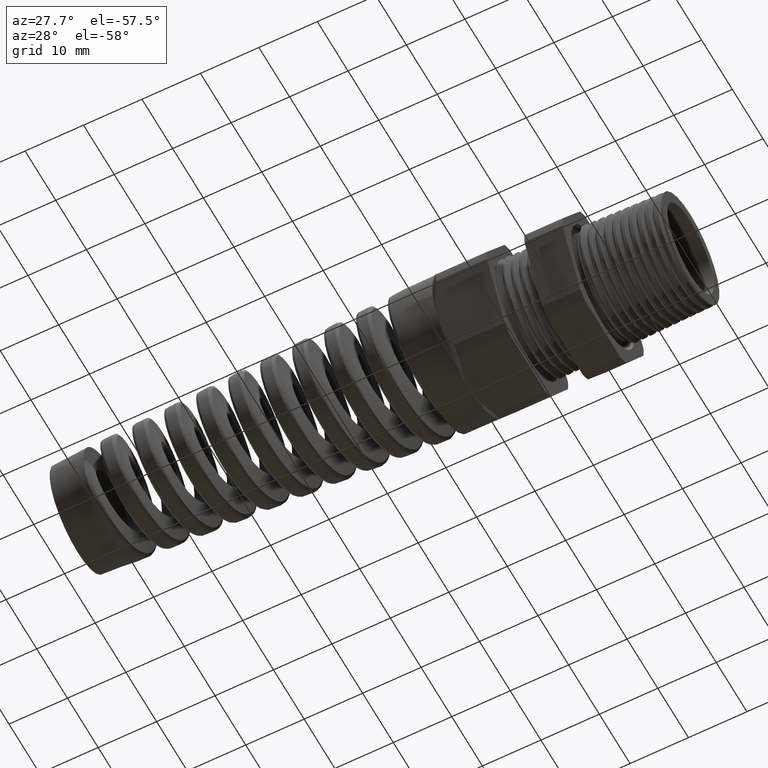
[diagram: clean part render]
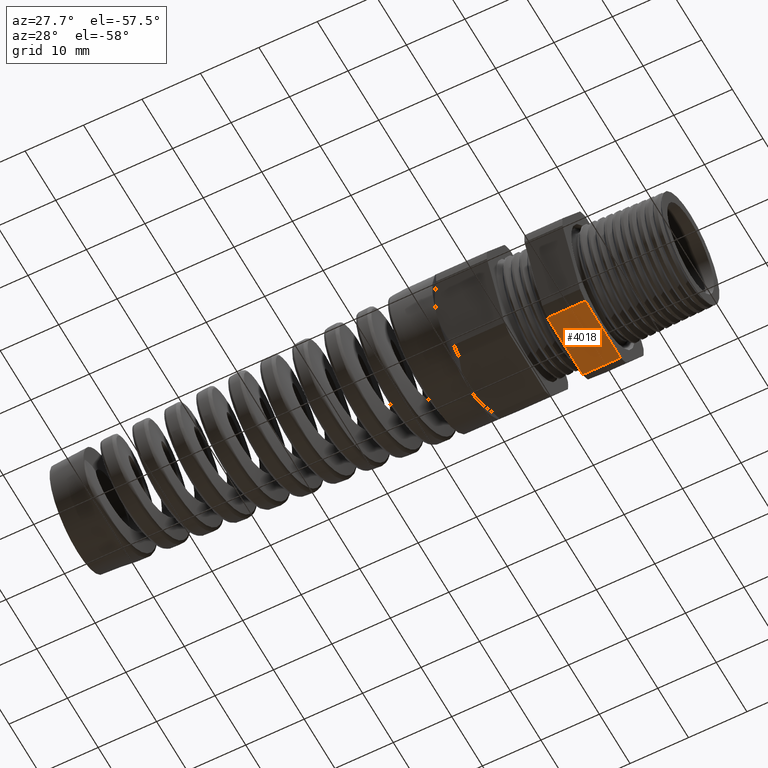
[diagram: same view with one face highlighted and labeled with its STEP entity id]
A machine part, auxiliary view. The second image highlights one B-rep face of the part: STEP entity #4018.
In plain terms, the highlighted planar face has unit normal (0, 0, -1).
Its self-contained STEP definition (entity closure, byte-faithful):
#650 = VERTEX_POINT ( 'NONE', #4281 ) ;
#783 = VERTEX_POINT ( 'NONE', #4309 ) ;
#786 = EDGE_CURVE ( 'NONE', #783, #650, #4308, .T. ) ;
#4018 = ADVANCED_FACE ( 'NONE', ( #16259 ), #16258, .T. ) ;
#4019 = EDGE_LOOP ( 'NONE', ( #4020, #4021, #4022, #4025 ) ) ;
#4020 = ORIENTED_EDGE ( 'NONE', *, *, #4040, .F. ) ;
#4021 = ORIENTED_EDGE ( 'NONE', *, *, #786, .F. ) ;
#4022 = ORIENTED_EDGE ( 'NONE', *, *, #4023, .T. ) ;
#4023 = EDGE_CURVE ( 'NONE', #783, #4024, #16253, .T. ) ;
#4024 = VERTEX_POINT ( 'NONE', #16249 ) ;
#4025 = ORIENTED_EDGE ( 'NONE', *, *, #4026, .F. ) ;
#4026 = EDGE_CURVE ( 'NONE', #4041, #4024, #16248, .T. ) ;
#4040 = EDGE_CURVE ( 'NONE', #650, #4041, #16303, .T. ) ;
#4041 = VERTEX_POINT ( 'NONE', #16296 ) ;
#4281 = CARTESIAN_POINT ( 'NONE',  ( -0.3100000000000000000, 0.2264307620443831200, -0.4700000000000000300 ) ) ;
#4300 = DIRECTION ( 'NONE',  ( 0.0000000000000000000, 1.000000000000000000, 0.0000000000000000000 ) ) ;
#4301 = VECTOR ( 'NONE', #4300, 39.37007874015748100 ) ;
#4302 = CARTESIAN_POINT ( 'NONE',  ( -0.3100000000000000000, 0.9399999999999999500, -0.4700000000000000300 ) ) ;
#4308 = LINE ( 'NONE', #4302, #4301 ) ;
#4309 = CARTESIAN_POINT ( 'NONE',  ( -0.3100000000000000000, -0.2264307620443830900, -0.4700000000000000300 ) ) ;
#16245 = DIRECTION ( 'NONE',  ( 0.0000000000000000000, -1.000000000000000000, 0.0000000000000000000 ) ) ;
#16246 = VECTOR ( 'NONE', #16245, 39.37007874015748100 ) ;
#16247 = CARTESIAN_POINT ( 'NONE',  ( -0.5659055118110235500, 0.9399999999999999500, -0.4700000000000000300 ) ) ;
#16248 = LINE ( 'NONE', #16247, #16246 ) ;
#16249 = CARTESIAN_POINT ( 'NONE',  ( -0.5659055118110235500, -0.2264307620443830900, -0.4700000000000000300 ) ) ;
#16250 = DIRECTION ( 'NONE',  ( -1.000000000000000000, 0.0000000000000000000, 0.0000000000000000000 ) ) ;
#16251 = VECTOR ( 'NONE', #16250, 39.37007874015748100 ) ;
#16252 = CARTESIAN_POINT ( 'NONE',  ( 0.2800000000000000300, -0.2264307620443830900, -0.4700000000000000300 ) ) ;
#16253 = LINE ( 'NONE', #16252, #16251 ) ;
#16254 = DIRECTION ( 'NONE',  ( -1.000000000000000000, 0.0000000000000000000, 0.0000000000000000000 ) ) ;
#16255 = DIRECTION ( 'NONE',  ( 0.0000000000000000000, 0.0000000000000000000, -1.000000000000000000 ) ) ;
#16256 = CARTESIAN_POINT ( 'NONE',  ( 0.2800000000000000300, 0.2264307620443830900, -0.4700000000000000300 ) ) ;
#16257 = AXIS2_PLACEMENT_3D ( 'NONE', #16256, #16255, #16254 ) ;
#16258 = PLANE ( 'NONE',  #16257 ) ;
#16259 = FACE_OUTER_BOUND ( 'NONE', #4019, .T. ) ;
#16296 = CARTESIAN_POINT ( 'NONE',  ( -0.5659055118110235500, 0.2264307620443831200, -0.4700000000000000300 ) ) ;
#16297 = DIRECTION ( 'NONE',  ( -1.000000000000000000, 0.0000000000000000000, 0.0000000000000000000 ) ) ;
#16298 = VECTOR ( 'NONE', #16297, 39.37007874015748100 ) ;
#16299 = CARTESIAN_POINT ( 'NONE',  ( 0.2800000000000000300, 0.2264307620443831200, -0.4700000000000000300 ) ) ;
#16303 = LINE ( 'NONE', #16299, #16298 ) ;